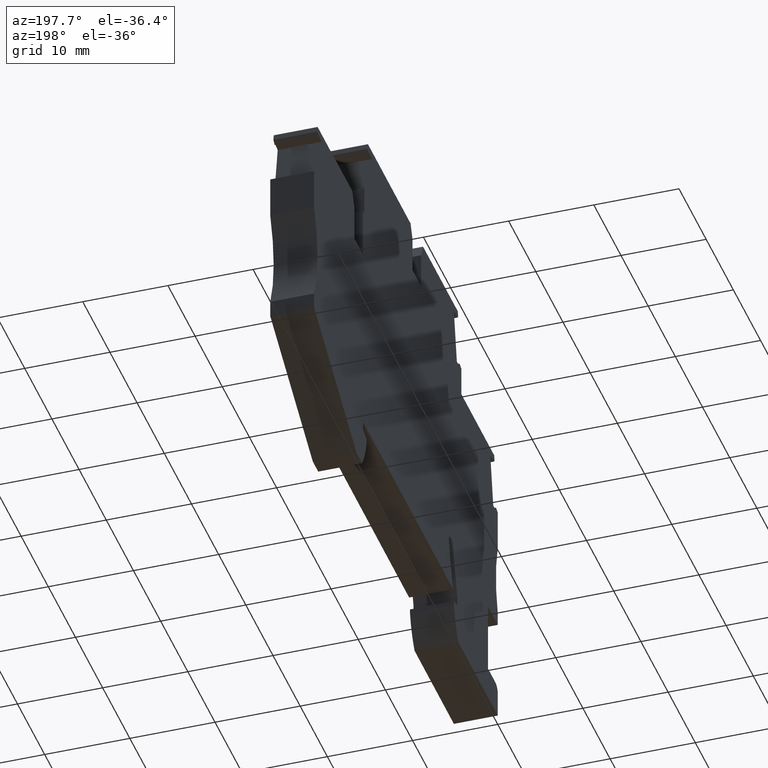
[diagram: clean part render]
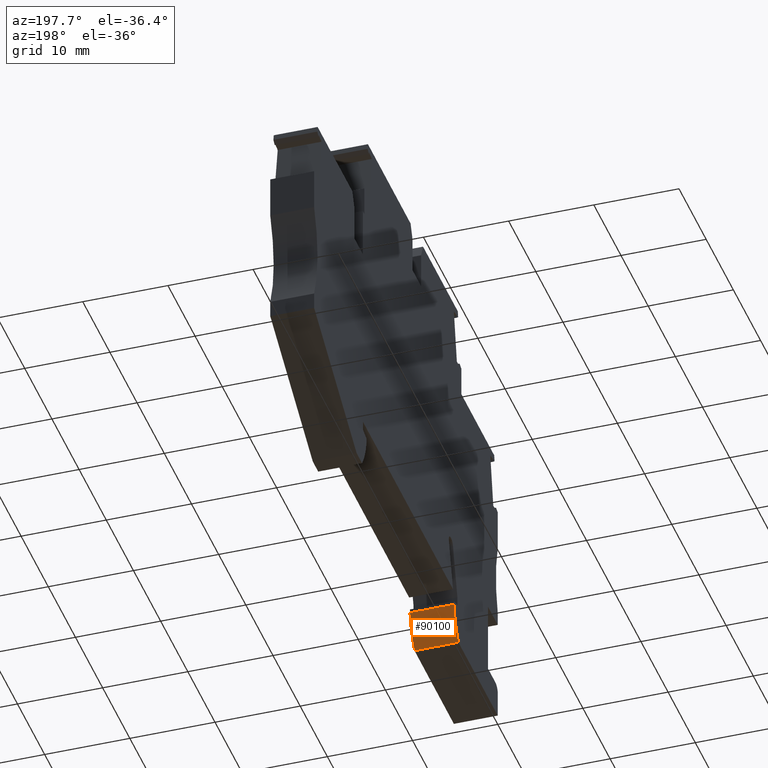
[diagram: same view with one face highlighted and labeled with its STEP entity id]
A machine part, auxiliary view. The second image highlights one B-rep face of the part: STEP entity #90100.
In plain terms, the highlighted cylindrical surface (partial cylindrical patch) has radius 9.5 mm, axis along (1, 0, 0).
Its self-contained STEP definition (entity closure, byte-faithful):
#5520=CARTESIAN_POINT('',(149.809692107295,-3.50328617782979,48.52));
#5530=VERTEX_POINT('',#5520);
#5560=CARTESIAN_POINT('',(142.074663081051,2.01208561046785,48.52));
#5570=DIRECTION('',(0.,0.,1.));
#5580=DIRECTION('',(1.,-6.93889390390723E-17,0.));
#5590=AXIS2_PLACEMENT_3D('',#5560,#5570,#5580);
#5600=CIRCLE('',#5590,9.49999999999899);
#5610=CARTESIAN_POINT('',(151.468635760428,0.596713822169507,48.52));
#5620=VERTEX_POINT('',#5610);
#5630=EDGE_CURVE('',#5530,#5620,#5600,.T.);
#89790=CARTESIAN_POINT('',(142.074663081051,2.01208561046785,53.67));
#89800=DIRECTION('',(0.,0.,1.));
#89810=DIRECTION('',(1.,-6.93889390390723E-17,0.));
#89820=AXIS2_PLACEMENT_3D('',#89790,#89800,#89810);
#89830=CYLINDRICAL_SURFACE('',#89820,9.49999999999899);
#89840=CARTESIAN_POINT('',(142.074663081051,2.01208561046785,53.67));
#89850=DIRECTION('',(0.,0.,1.));
#89860=DIRECTION('',(1.,-6.93889390390723E-17,0.));
#89870=AXIS2_PLACEMENT_3D('',#89840,#89850,#89860);
#89880=CIRCLE('',#89870,9.49999999999899);
#89890=CARTESIAN_POINT('',(149.809692107295,-3.50328617782979,53.67));
#89900=VERTEX_POINT('',#89890);
#89910=CARTESIAN_POINT('',(151.468635760428,0.596713822169507,53.67));
#89920=VERTEX_POINT('',#89910);
#89930=EDGE_CURVE('',#89900,#89920,#89880,.T.);
#89940=ORIENTED_EDGE('',*,*,#89930,.F.);
#89950=CARTESIAN_POINT('',(151.468635760428,0.596713822169514,53.67));
#89960=DIRECTION('',(0.,0.,-1.));
#89970=VECTOR('',#89960,1.);
#89980=LINE('',#89950,#89970);
#89990=EDGE_CURVE('',#89920,#5620,#89980,.T.);
#90000=ORIENTED_EDGE('',*,*,#89990,.F.);
#90010=ORIENTED_EDGE('',*,*,#5630,.T.);
#90020=CARTESIAN_POINT('',(149.809692107295,-3.50328617782979,53.67));
#90030=DIRECTION('',(0.,0.,1.));
#90040=VECTOR('',#90030,1.);
#90050=LINE('',#90020,#90040);
#90060=EDGE_CURVE('',#5530,#89900,#90050,.T.);
#90070=ORIENTED_EDGE('',*,*,#90060,.F.);
#90080=EDGE_LOOP('',(#90070,#90010,#90000,#89940));
#90090=FACE_OUTER_BOUND('',#90080,.T.);
#90100=ADVANCED_FACE('',(#90090),#89830,.T.);